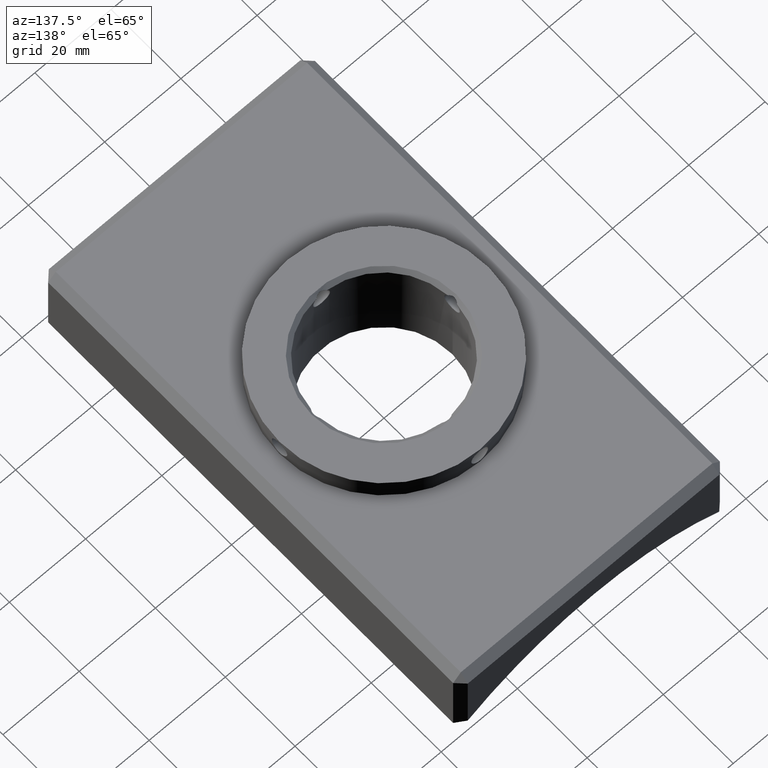
[diagram: clean part render]
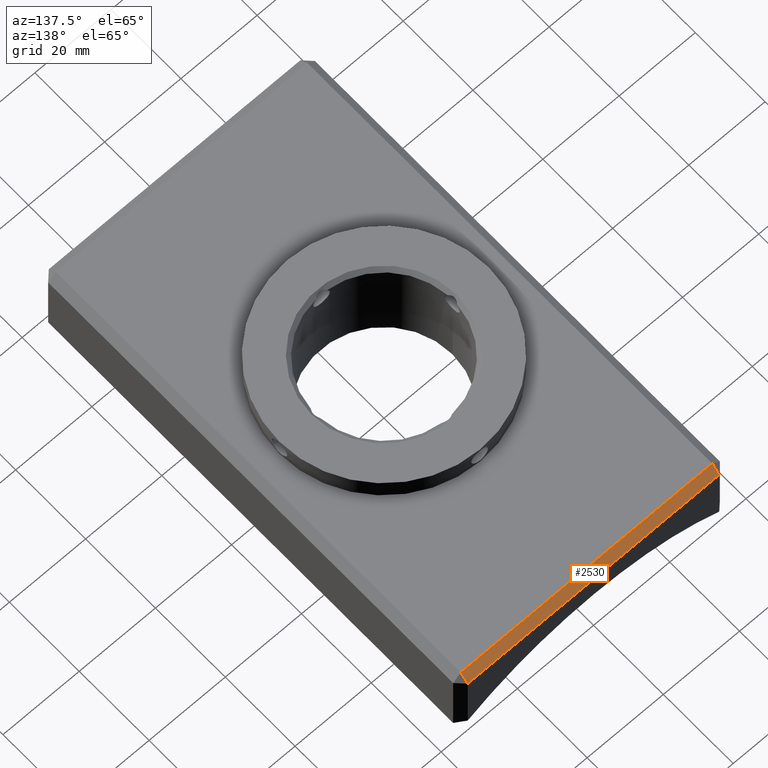
[diagram: same view with one face highlighted and labeled with its STEP entity id]
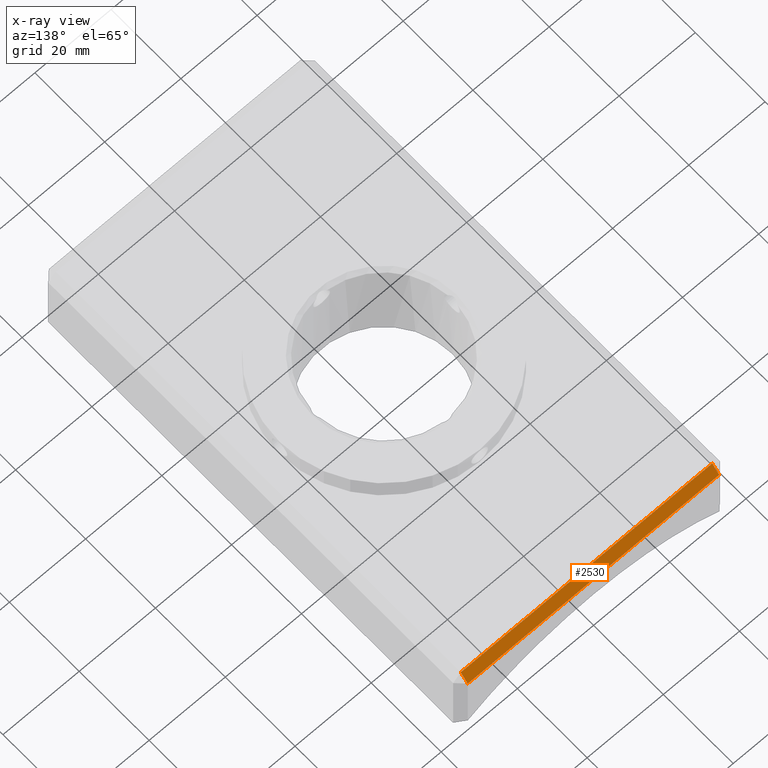
[diagram: x-ray of the same camera — body ghosted, the highlighted face saturated]
A machine part, auxiliary view. The second image highlights one B-rep face of the part: STEP entity #2530.
The next image is the same camera in x-ray: the body ghosted, the highlighted face saturated — about 0% of this face is hidden behind the body in this view.
In plain terms, the highlighted planar face has unit normal (0, 0.7071, 0.7071).
Its self-contained STEP definition (entity closure, byte-faithful):
#78 = VERTEX_POINT ( 'NONE', #17033 ) ;
#278 = EDGE_CURVE ( 'NONE', #78, #3088, #4808, .T. ) ;
#936 = ORIENTED_EDGE ( 'NONE', *, *, #12070, .T. ) ;
#1026 = VECTOR ( 'NONE', #5360, 1000.000000000000000 ) ;
#1118 = VERTEX_POINT ( 'NONE', #11706 ) ;
#1631 = FACE_OUTER_BOUND ( 'NONE', #17840, .T. ) ;
#2530 = ADVANCED_FACE ( 'NONE', ( #1631 ), #14848, .T. ) ;
#2872 = VECTOR ( 'NONE', #17070, 1000.000000000000114 ) ;
#3088 = VERTEX_POINT ( 'NONE', #9752 ) ;
#3138 = CARTESIAN_POINT ( 'NONE',  ( -32.99999999999998579, 57.99999999999998579, 7.500000000000008882 ) ) ;
#3438 = DIRECTION ( 'NONE',  ( -1.000000000000000000, 1.982541115402065356E-16, -3.725757332891973782E-32 ) ) ;
#4808 = LINE ( 'NONE', #15380, #1026 ) ;
#4839 = EDGE_CURVE ( 'NONE', #3088, #1118, #12775, .T. ) ;
#4942 = DIRECTION ( 'NONE',  ( 1.401868266681947598E-16, 0.7071067811865504593, 0.7071067811865446862 ) ) ;
#5089 = CARTESIAN_POINT ( 'NONE',  ( 32.99999999999998579, 58.99999999999999289, 6.499999999999985789 ) ) ;
#5360 = DIRECTION ( 'NONE',  ( 1.000000000000000000, -1.982541115402065356E-16, 3.725757332891973234E-32 ) ) ;
#5805 = VECTOR ( 'NONE', #13565, 1000.000000000000114 ) ;
#6614 = ORIENTED_EDGE ( 'NONE', *, *, #11158, .F. ) ;
#7181 = DIRECTION ( 'NONE',  ( -1.000000000000000000, 1.982541115402065356E-16, -3.725757332891973782E-32 ) ) ;
#7547 = ORIENTED_EDGE ( 'NONE', *, *, #4839, .F. ) ;
#7629 = CARTESIAN_POINT ( 'NONE',  ( -35.00000000000000000, 60.00000000000000711, 5.499999999999976907 ) ) ;
#7793 = AXIS2_PLACEMENT_3D ( 'NONE', #7629, #4942, #3438 ) ;
#9385 = LINE ( 'NONE', #15758, #13668 ) ;
#9752 = CARTESIAN_POINT ( 'NONE',  ( 32.99999999999998579, 59.99999999999999289, 5.499999999999975131 ) ) ;
#9968 = CARTESIAN_POINT ( 'NONE',  ( -32.99999999999998579, 60.00000000000000711, 5.499999999999976019 ) ) ;
#11158 = EDGE_CURVE ( 'NONE', #1118, #17025, #9385, .T. ) ;
#11706 = CARTESIAN_POINT ( 'NONE',  ( 32.99999999999998579, 57.99999999999997868, 7.500000000000008882 ) ) ;
#12070 = EDGE_CURVE ( 'NONE', #78, #17025, #18567, .T. ) ;
#12775 = LINE ( 'NONE', #5089, #5805 ) ;
#13565 = DIRECTION ( 'NONE',  ( 5.768888059150679123E-16, -0.7071067811865445751, 0.7071067811865504593 ) ) ;
#13668 = VECTOR ( 'NONE', #7181, 1000.000000000000000 ) ;
#13870 = ORIENTED_EDGE ( 'NONE', *, *, #278, .F. ) ;
#14848 = PLANE ( 'NONE',  #7793 ) ;
#15380 = CARTESIAN_POINT ( 'NONE',  ( 35.00000000000000000, 59.99999999999999289, 5.499999999999975131 ) ) ;
#15758 = CARTESIAN_POINT ( 'NONE',  ( -35.00000000000000000, 57.99999999999998579, 7.500000000000008882 ) ) ;
#17025 = VERTEX_POINT ( 'NONE', #3138 ) ;
#17033 = CARTESIAN_POINT ( 'NONE',  ( -32.99999999999998579, 60.00000000000000711, 5.499999999999975131 ) ) ;
#17070 = DIRECTION ( 'NONE',  ( -6.046443815306980091E-16, -0.7071067811865445751, 0.7071067811865504593 ) ) ;
#17840 = EDGE_LOOP ( 'NONE', ( #936, #6614, #7547, #13870 ) ) ;
#18567 = LINE ( 'NONE', #9968, #2872 ) ;